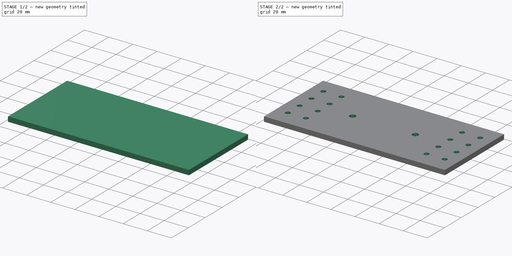
[diagram: build sequence overview — one tinted view per stage of 2, left to right]
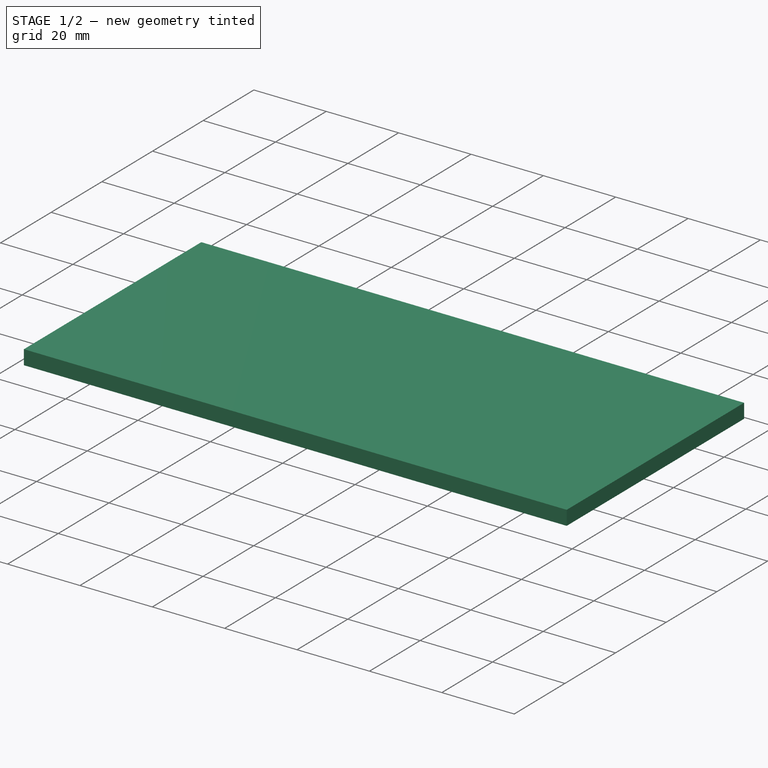
[diagram: stage 1 of 2 — iso view after this stage's code; geometry added in this stage tinted green]
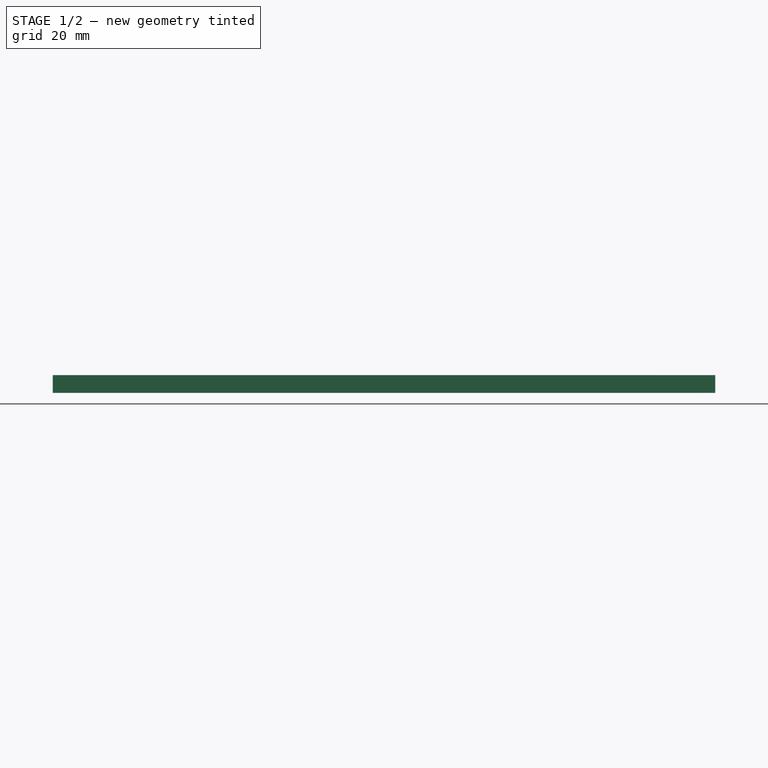
[diagram: stage 1 of 2 — front view after this stage's code; geometry added in this stage tinted green]
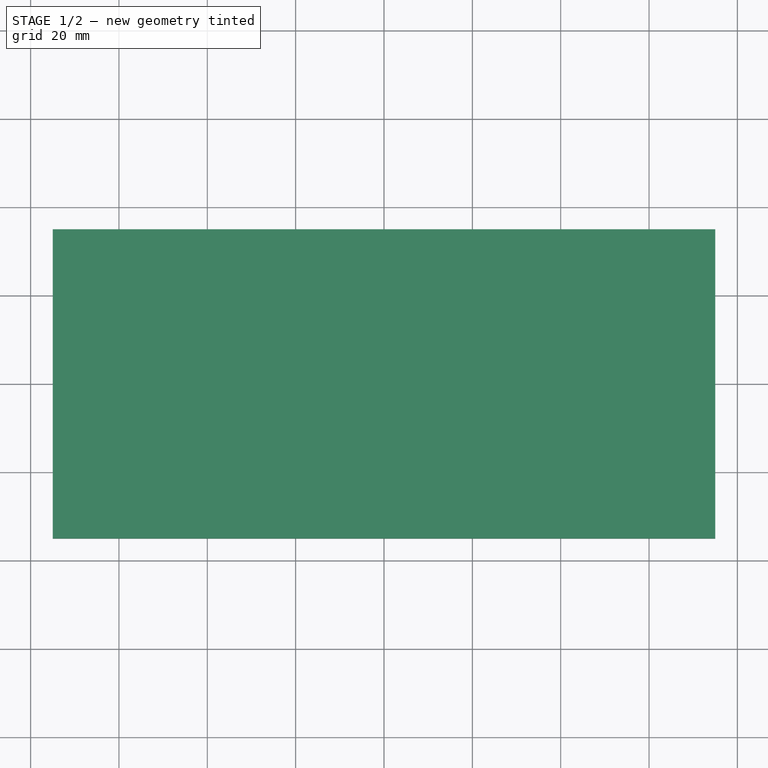
[diagram: stage 1 of 2 — top view after this stage's code; geometry added in this stage tinted green]
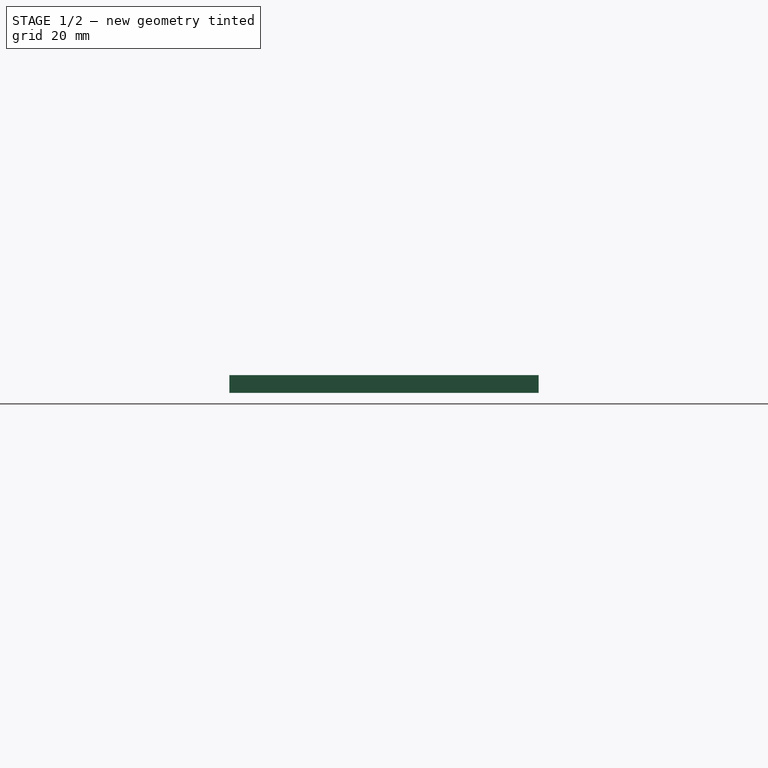
[diagram: stage 1 of 2 — right view after this stage's code; geometry added in this stage tinted green]
FCSTD DOCUMENT  (FreeCAD 0.21R33771 (Git))
Label: z rail holding plate
License: All rights reserved
LicenseURL: http://en.wikipedia.org/wiki/All_rights_reserved
objects: Sketcher::SketchObject×2, PartDesign::Pad×1, PartDesign::Pocket×1, PartDesign::Body×1
note: 7 computed .brp shape members not serialized (recipe doc carries the construction recipe); baked Part::Feature solids carry a one-line shape summary decoded from their .brp

FEATURE [Sketcher::SketchObject] Sketch
  FullyConstrained = true
  MapMode = 5
  Support = -> [XY_Plane]
  sketch-geometry (4):
    g0: LineSegment StartX=-75 StartY=35 StartZ=0 EndX=75 EndY=35 EndZ=0
    g1: LineSegment StartX=75 StartY=35 StartZ=0 EndX=75 EndY=-35 EndZ=0
    g2: LineSegment StartX=75 StartY=-35 StartZ=0 EndX=-75 EndY=-35 EndZ=0
    g3: LineSegment StartX=-75 StartY=-35 StartZ=0 EndX=-75 EndY=35 EndZ=0
  constraints (12):
    c: Coincident(g0,g1)
    c: Coincident(g1,g2)
    c: Coincident(g2,g3)
    c: Coincident(g3,g0)
    c: Horizontal(g0)
    c: Horizontal(g2)
    c: Vertical(g1)
    c: Vertical(g3)
    c: Distance(g0) = 150
    c: Distance(g3) = 70
    c: Distance(g-1,g3) = 75
    c: Distance(g-1,g2) = 35
FEATURE [PartDesign::Pad] Pad
  Direction = (0,0,1)
  Length = 4
  Length2 = 10
  Profile = -> Sketch
  ReferenceAxis = -> Sketch [N_Axis]
  Type = 0
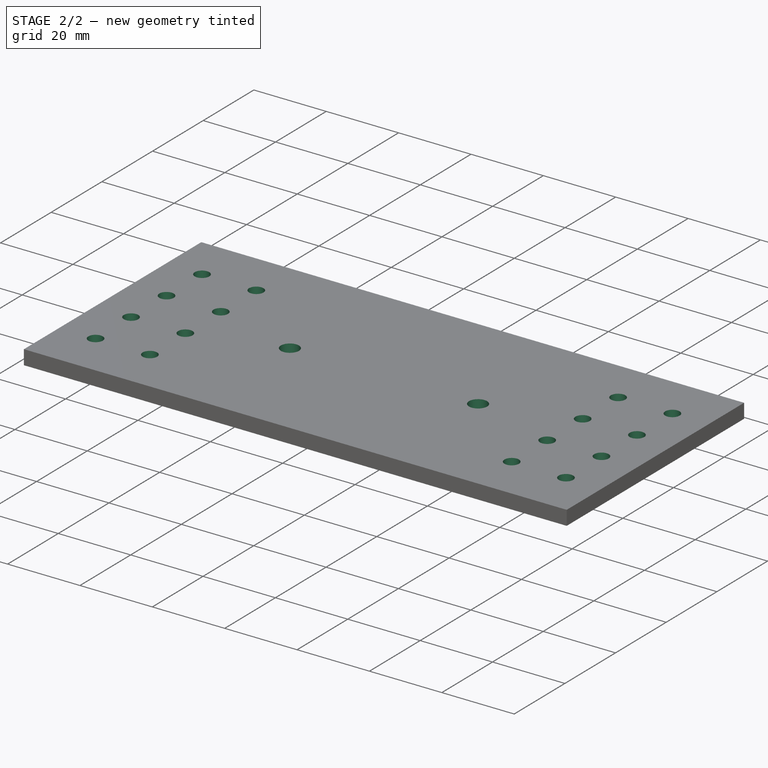
[diagram: stage 2 of 2 — iso view after this stage's code; geometry added in this stage tinted green]
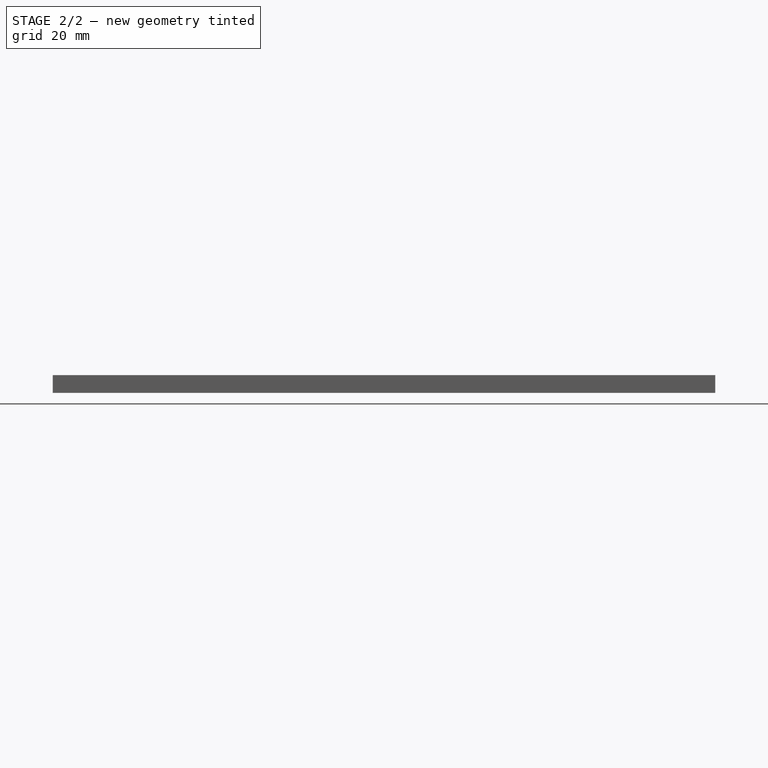
[diagram: stage 2 of 2 — front view after this stage's code; geometry added in this stage tinted green]
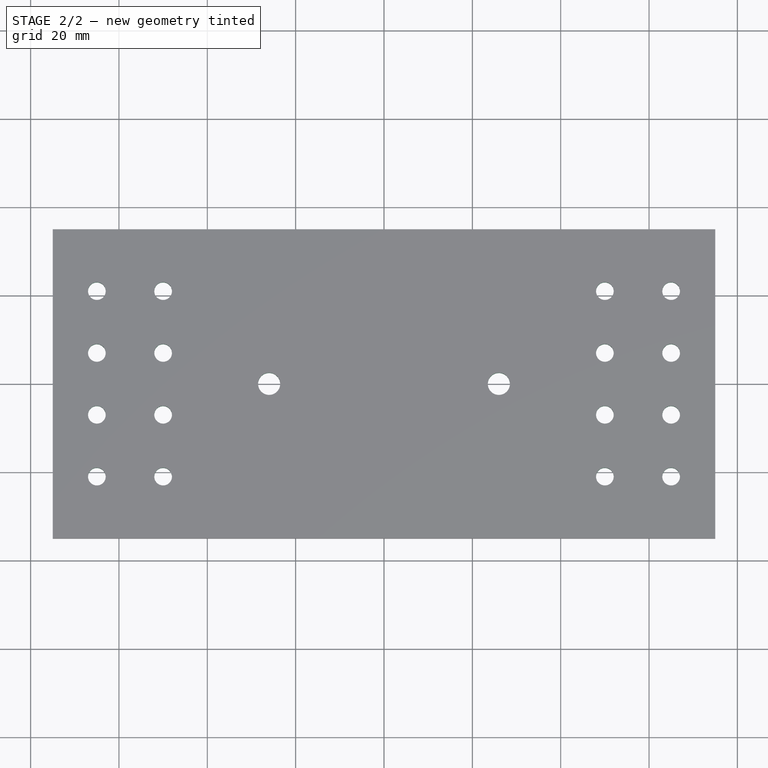
[diagram: stage 2 of 2 — top view after this stage's code; geometry added in this stage tinted green]
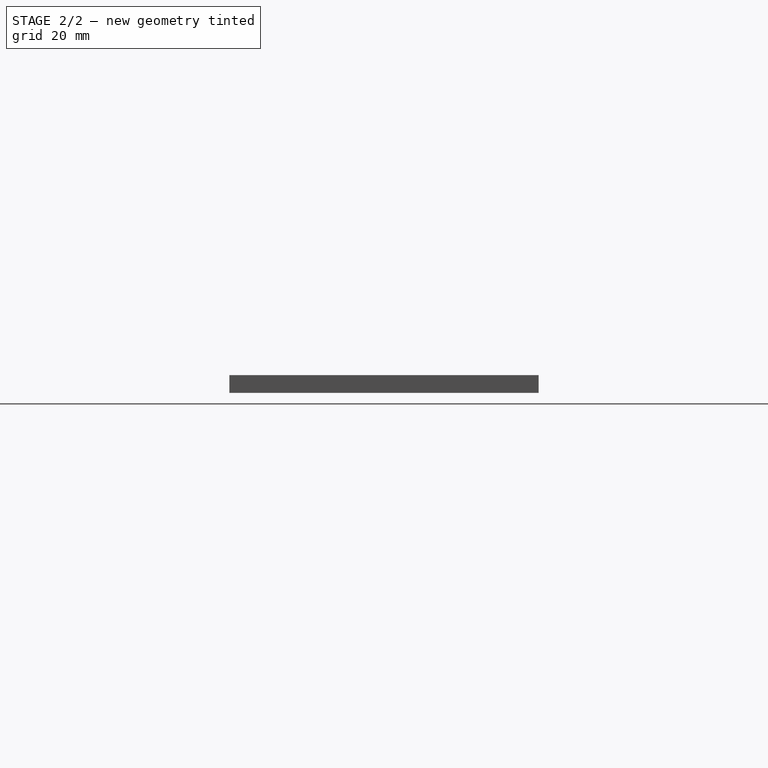
[diagram: stage 2 of 2 — right view after this stage's code; geometry added in this stage tinted green]
FEATURE [Sketcher::SketchObject] Sketch001
  ExternalGeometry = -> [Pad]
  FullyConstrained = true
  MapMode = 5
  Placement = pos=(0,0,4) rot=(0,0,1;0rad)
  Support = -> [Pad]
  sketch-geometry (18):
    g0: Circle CenterX=-65 CenterY=21 CenterZ=0 NormalX=0 NormalY=0 NormalZ=1 AngleXU=0 Radius=2
    g1: Circle CenterX=-65 CenterY=7 CenterZ=0 NormalX=0 NormalY=0 NormalZ=1 AngleXU=0 Radius=2
    g2: Circle CenterX=-65 CenterY=-7 CenterZ=0 NormalX=0 NormalY=0 NormalZ=1 AngleXU=0 Radius=2
    g3: Circle CenterX=-65 CenterY=-21 CenterZ=0 NormalX=0 NormalY=0 NormalZ=1 AngleXU=0 Radius=2
    g4: Circle CenterX=-50 CenterY=-21 CenterZ=0 NormalX=0 NormalY=0 NormalZ=1 AngleXU=0 Radius=2
    g5: Circle CenterX=-50 CenterY=-7 CenterZ=0 NormalX=0 NormalY=0 NormalZ=1 AngleXU=0 Radius=2
    g6: Circle CenterX=-50 CenterY=7 CenterZ=0 NormalX=0 NormalY=0 NormalZ=1 AngleXU=0 Radius=2
    g7: Circle CenterX=-50 CenterY=21 CenterZ=0 NormalX=0 NormalY=0 NormalZ=1 AngleXU=0 Radius=2
    g8: Circle CenterX=50 CenterY=21 CenterZ=0 NormalX=0 NormalY=0 NormalZ=1 AngleXU=0 Radius=2
    g9: Circle CenterX=50 CenterY=7 CenterZ=0 NormalX=0 NormalY=0 NormalZ=1 AngleXU=0 Radius=2
    g10: Circle CenterX=50 CenterY=-7 CenterZ=0 NormalX=0 NormalY=0 NormalZ=1 AngleXU=0 Radius=2
    g11: Circle CenterX=50 CenterY=-21 CenterZ=0 NormalX=0 NormalY=0 NormalZ=1 AngleXU=0 Radius=2
    g12: Circle CenterX=65 CenterY=-21 CenterZ=0 NormalX=0 NormalY=0 NormalZ=1 AngleXU=0 Radius=2
    g13: Circle CenterX=65 CenterY=-7 CenterZ=0 NormalX=0 NormalY=0 NormalZ=1 AngleXU=0 Radius=2
    g14: Circle CenterX=65 CenterY=7 CenterZ=0 NormalX=0 NormalY=0 NormalZ=1 AngleXU=0 Radius=2
    g15: Circle CenterX=65 CenterY=21 CenterZ=0 NormalX=0 NormalY=0 NormalZ=1 AngleXU=0 Radius=2
    g16: Circle CenterX=-26 CenterY=0 CenterZ=0 NormalX=0 NormalY=0 NormalZ=1 AngleXU=0 Radius=2.5
    g17: Circle CenterX=26 CenterY=0 CenterZ=0 NormalX=0 NormalY=0 NormalZ=1 AngleXU=0 Radius=2.5
  constraints (56):
    c: Radius(g7) = 2
    c: Radius(g0) = 2
    c: Radius(g1) = 2
    c: Radius(g2) = 2
    c: Radius(g3) = 2
    c: Radius(g4) = 2
    c: Radius(g5) = 2
    c: Radius(g16) = 2.5
    c: Radius(g17) = 2.5
    c: Radius(g8) = 2
    c: Radius(g9) = 2
    c: Radius(g10) = 2
    c: Radius(g11) = 2
    c: Radius(g12) = 2
    c: Radius(g13) = 2
    c: Radius(g14) = 2
    c: Radius(g15) = 2
    c: Distance(g0,g-3) = 10
    c: Distance(g1,g-3) = 10
    c: Distance(g-3) = 70
    c: Distance(g2,g-3) = 10
    c: Distance(g3,g-3) = 10
    c: Distance(g4,g3) = 15
    c: Distance(g2,g5) = 15
    c: Distance(g1,g6) = 15
    c: Distance(g0,g7) = 15
    c: PointOnObject(g16,g-1)
    c: PointOnObject(g17,g-1)
    c: Distance(g-1,g16) = 26
    c: Distance(g-1,g17) = 26
    c: Distance(g15,g-6) = 10
    c: Distance(g14,g-6) = 10
    c: Distance(g13,g-6) = 10
    c: Distance(g12,g-6) = 10
    c: Distance(g11,g12) = 15
    c: Distance(g10,g13) = 15
    c: Distance(g9,g14) = 15
    c: Distance(g8,g15) = 15
    c: Distance(g3,g-5) = 14
    c: Distance(g2,g3) = 14
    c: Distance(g2,g1) = 14
    c: Distance(g1,g0) = 14
    c: Distance(g4,g-5) = 14
    c: Distance(g5,g4) = 14
    c: Distance(g6,g5) = 14
    c: Distance(g7,g6) = 14
    c: Radius(g6) = 2
    c: Distance(g12,g-5) = 14
    c: Distance(g13,g12) = 14
    c: Distance(g14,g13) = 14
    c: Distance(g15,g14) = 14
    c: Distance(g8,g-4) = 14
    c: Distance(g9,g8) = 14
    c: Distance(g9,g10) = 14
    c: Distance(g10,g11) = 14
    c: Distance(g-4) = 150
FEATURE [PartDesign::Pocket] Pocket
  BaseFeature = -> Pad
  Direction = (0,0,-1)
  Length = 5
  Length2 = 5
  Profile = -> Sketch001
  ReferenceAxis = -> Sketch001 [N_Axis]
  Type = 0
FEATURE [PartDesign::Body] Body
  Group = -> [Sketch,Pad,Sketch001,Pocket]
  Origin = -> Origin
  Tip = -> Pocket
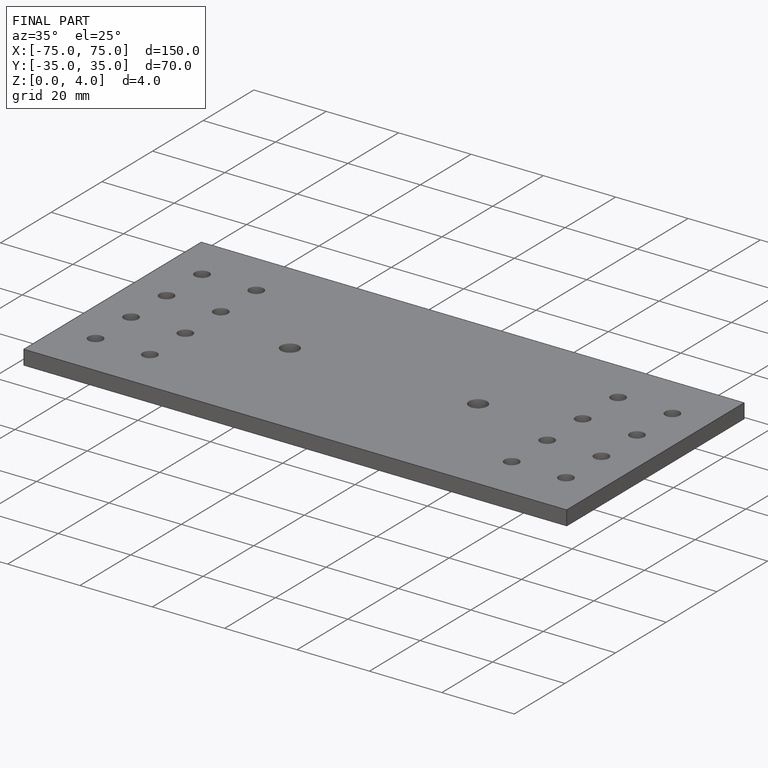
[diagram: finished part — iso view with bounding-box wireframe]
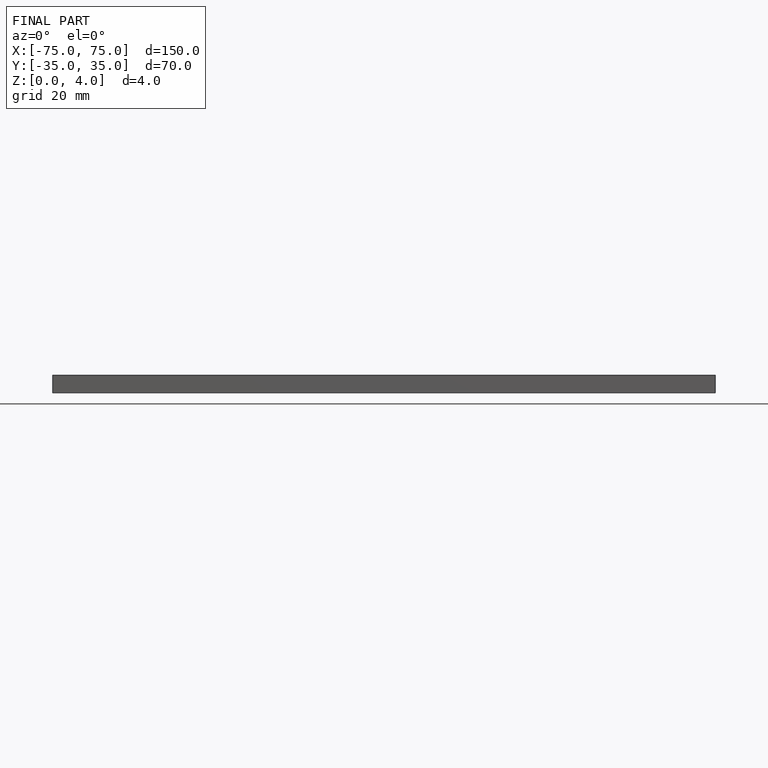
[diagram: finished part — front view with bounding-box wireframe]
